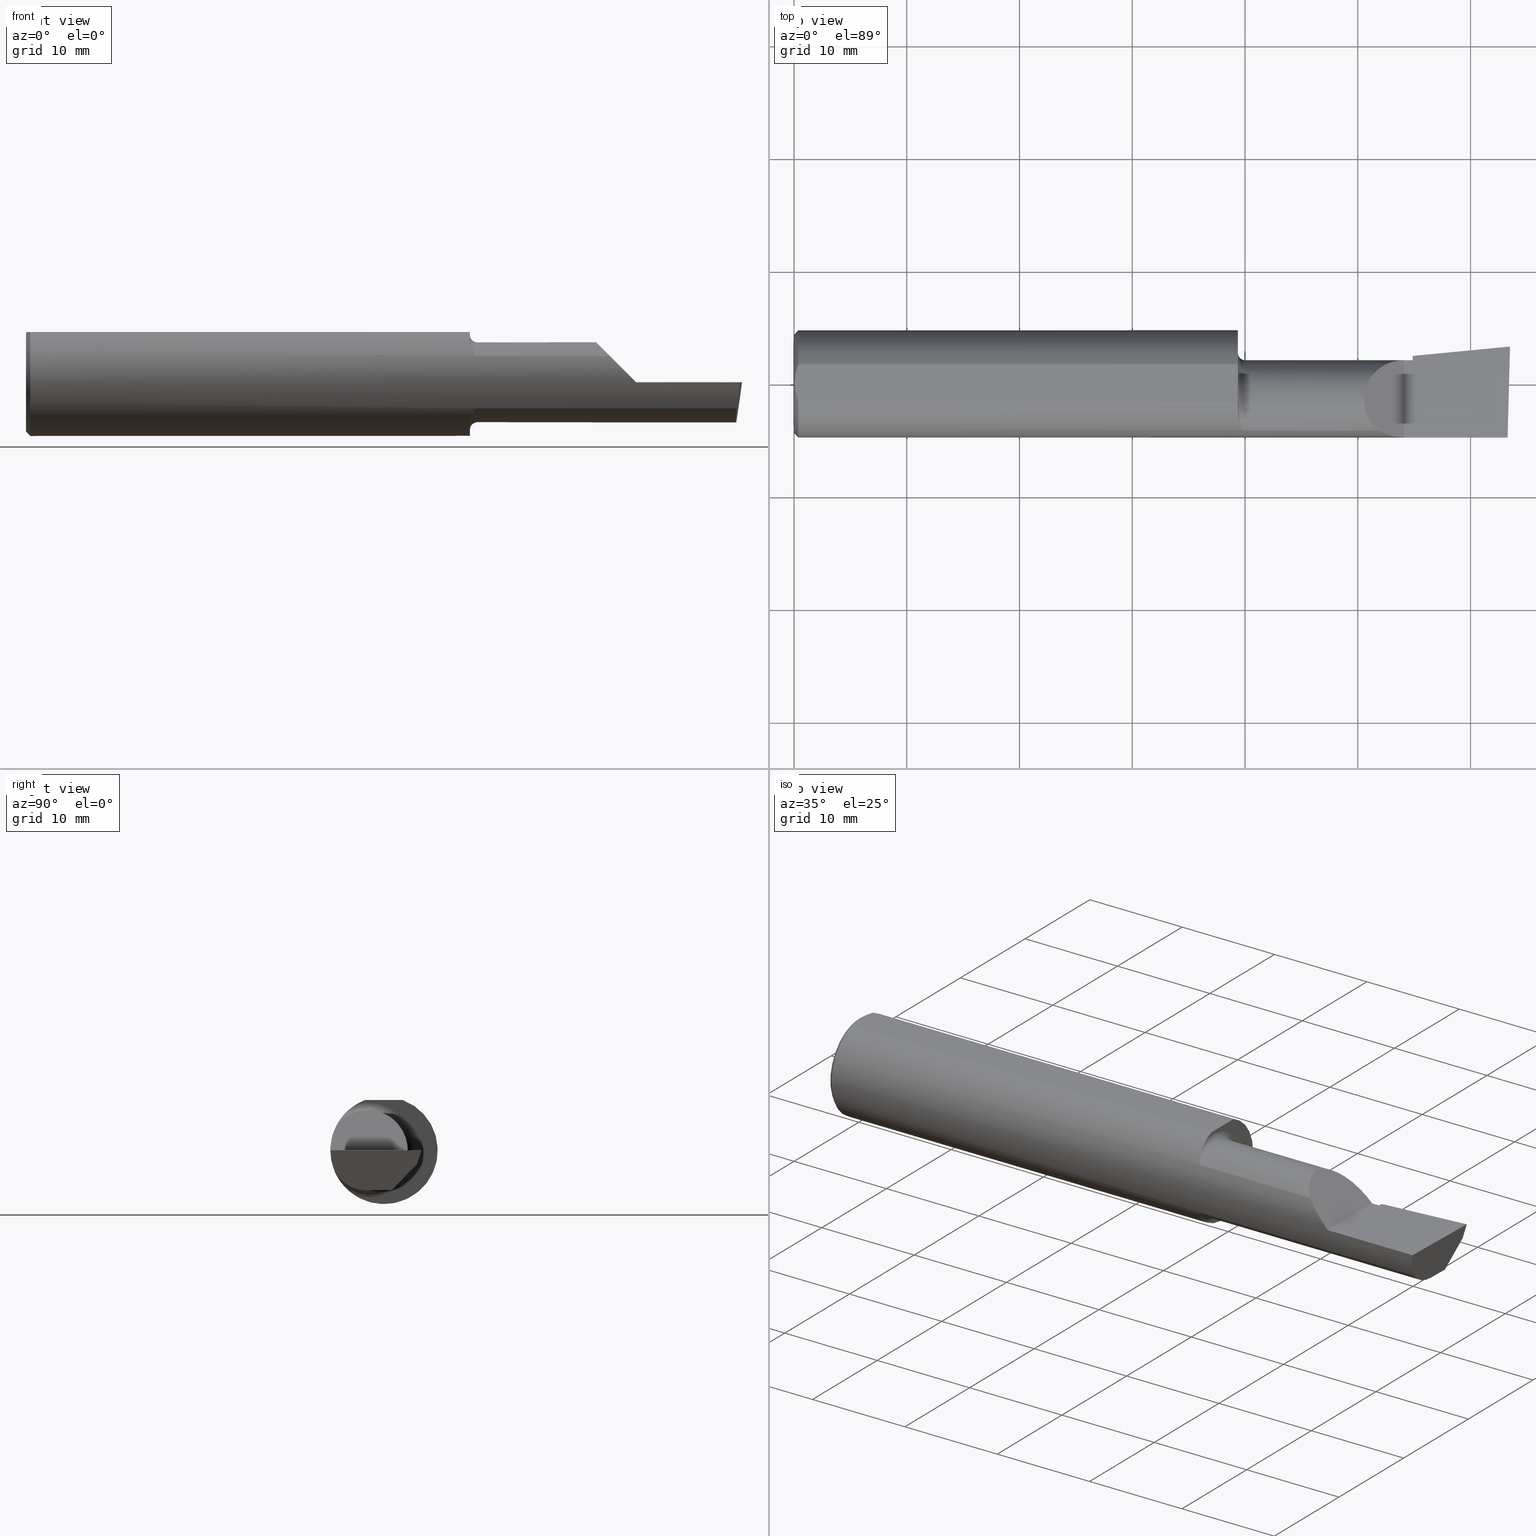
[diagram: canonical four-view strip — front | top / right | iso, engineering-drawing reading convention]
A machine part, canonical four-view strip (front | top / right | iso — engineering-drawing reading convention). The complete STEP part file that produces these views, byte-faithful:
ISO-10303-21;
HEADER;
FILE_DESCRIPTION (( 'STEP AP203' ),
    '1' );
FILE_NAME ('217516-B320900.STEP',
    '2024-04-26T19:31:52',
    ( '' ),
    ( '' ),
    'SwSTEP 2.0',
    'SolidWorks 2022',
    '' );
FILE_SCHEMA (( 'CONFIG_CONTROL_DESIGN' ));
ENDSEC;

DATA;
#1 = PLANE ( 'NONE',  #517 ) ;
#2 = VECTOR ( 'NONE', #337, 39.37007874015748854 ) ;
#3 = AXIS2_PLACEMENT_3D ( 'NONE', #571, #235, #75 ) ;
#4 = CARTESIAN_POINT ( 'NONE',  ( 0.000000000000000000, -0.05740000000000001351, 0.000000000000000000 ) ) ;
#5 = ORIENTED_EDGE ( 'NONE', *, *, #470, .F. ) ;
#6 = DIRECTION ( 'NONE',  ( -1.000000000000000000, -0.000000000000000000, -0.000000000000000000 ) ) ;
#7 = EDGE_LOOP ( 'NONE', ( #272, #560, #181, #140, #277 ) ) ;
#8 = FACE_OUTER_BOUND ( 'NONE', #104, .T. ) ;
#9 = PLANE ( 'NONE',  #130 ) ;
#10 = ADVANCED_FACE ( 'NONE', ( #146 ), #53, .T. ) ;
#11 = CARTESIAN_POINT ( 'NONE',  ( 1.550384441902395327, -0.1115101367984837610, -0.1507946173152225067 ) ) ;
#12 = AXIS2_PLACEMENT_3D ( 'NONE', #72, #548, #218 ) ;
#13 = CARTESIAN_POINT ( 'NONE',  ( 2.493766568580444432, 0.1168246249203732934, -0.04780233936830599606 ) ) ;
#14 = DATE_AND_TIME ( #212, #367 ) ;
#15 = DIRECTION ( 'NONE',  ( 0.9953961983671787417, 0.09584575252022459191, -1.028972571603813720E-16 ) ) ;
#16 = VERTEX_POINT ( 'NONE', #43 ) ;
#17 = CARTESIAN_POINT ( 'NONE',  ( 2.493439983562941720, 0.1146611065212079089, -0.04999999999999999584 ) ) ;
#18 = CARTESIAN_POINT ( 'NONE',  ( 2.038695632261437130, -0.1635956445993029529, 0.09130436773856188959 ) ) ;
#19 = ORIENTED_EDGE ( 'NONE', *, *, #92, .T. ) ;
#20 = APPROVAL_STATUS ( 'not_yet_approved' ) ;
#21 = VECTOR ( 'NONE', #584, 39.37007874015748854 ) ;
#22 = CARTESIAN_POINT ( 'NONE',  ( 0.000000000000000000, 0.06597272163553663527, 0.1753499999999999781 ) ) ;
#23 = VERTEX_POINT ( 'NONE', #93 ) ;
#24 = CARTESIAN_POINT ( 'NONE',  ( 1.550383728133730266, -0.1114837668894149980, 0.1508119329971097933 ) ) ;
#25 = ORIENTED_EDGE ( 'NONE', *, *, #68, .F. ) ;
#26 = DIRECTION ( 'NONE',  ( -1.033731667140896077E-16, 0.000000000000000000, -1.000000000000000000 ) ) ;
#27 = DIRECTION ( 'NONE',  ( 0.000000000000000000, -1.000000000000000000, 0.000000000000000000 ) ) ;
#28 = ORIENTED_EDGE ( 'NONE', *, *, #522, .T. ) ;
#29 = COORDINATED_UNIVERSAL_TIME_OFFSET ( 8, 0, .BEHIND. ) ;
#30 = ADVANCED_FACE ( 'NONE', ( #434 ), #488, .F. ) ;
#31 = CARTESIAN_POINT ( 'NONE',  ( 2.500000000000000000, -0.05739999999999999963, -0.1400500000000000633 ) ) ;
#32 = CIRCLE ( 'NONE', #151, 0.1873499999999999888 ) ;
#33 = AXIS2_PLACEMENT_3D ( 'NONE', #329, #521, #126 ) ;
#34 = ORIENTED_EDGE ( 'NONE', *, *, #132, .T. ) ;
#35 =( BOUNDED_CURVE ( )  B_SPLINE_CURVE ( 3, ( #502, #418, #177, #459 ),
 .UNSPECIFIED., .F., .T. ) 
 B_SPLINE_CURVE_WITH_KNOTS ( ( 4, 4 ),
 ( 0.8516985021657653698, 1.360746882515200484 ),
 .UNSPECIFIED. ) 
 CURVE ( )  GEOMETRIC_REPRESENTATION_ITEM ( )  RATIONAL_B_SPLINE_CURVE ( ( 1.000000000000000000, 0.9785221379938656705, 0.9785221379938656705, 1.000000000000000000 ) ) 
 REPRESENTATION_ITEM ( '' )  );
#36 =( NAMED_UNIT ( * ) PLANE_ANGLE_UNIT ( ) SI_UNIT ( $, .RADIAN. ) );
#37 = CARTESIAN_POINT ( 'NONE',  ( 1.563764108097883687, -0.1573043405450770260, 0.1018329020719638545 ) ) ;
#38 = ORIENTED_EDGE ( 'NONE', *, *, #338, .T. ) ;
#39 = PERSON_AND_ORGANIZATION_ROLE ( 'creator' ) ;
#40 = EDGE_CURVE ( 'NONE', #158, #567, #412, .T. ) ;
#41 = PLANE ( 'NONE',  #356 ) ;
#42 = PRODUCT_DEFINITION ( 'UNKNOWN', '', #346, #424 ) ;
#43 = CARTESIAN_POINT ( 'NONE',  ( 2.160000000000000142, 0.01441505128072300204, -0.1202356058309979880 ) ) ;
#44 = CARTESIAN_POINT ( 'NONE',  ( 2.160000000000000142, -0.05739999999999999963, -0.1400500000000000633 ) ) ;
#45 = CIRCLE ( 'NONE', #435, 0.1873499999999999888 ) ;
#46 = VERTEX_POINT ( 'NONE', #512 ) ;
#47 = DIRECTION ( 'NONE',  ( 6.829619984160658816E-18, -1.000000000000000000, 0.000000000000000000 ) ) ;
#48 = EDGE_CURVE ( 'NONE', #351, #124, #56, .T. ) ;
#49 = CARTESIAN_POINT ( 'NONE',  ( 0.008227791779583789808, -0.04447712204611815878, 0.1753499999999999781 ) ) ;
#50 = FACE_OUTER_BOUND ( 'NONE', #90, .T. ) ;
#51 = EDGE_CURVE ( 'NONE', #379, #128, #35, .T. ) ;
#52 = PERSON_AND_ORGANIZATION_ROLE ( 'design_supplier' ) ;
#53 = CONICAL_SURFACE ( 'NONE', #414, 0.1873499999999999888, 0.7853981633974602694 ) ;
#54 = AXIS2_PLACEMENT_3D ( 'NONE', #154, #302, #626 ) ;
#55 = CARTESIAN_POINT ( 'NONE',  ( 0.000000000000000000, 0.000000000000000000, 0.000000000000000000 ) ) ;
#56 =( BOUNDED_CURVE ( )  B_SPLINE_CURVE ( 3, ( #175, #504, #545, #224 ),
 .UNSPECIFIED., .F., .T. ) 
 B_SPLINE_CURVE_WITH_KNOTS ( ( 4, 4 ),
 ( 4.712388980384689674, 5.221437360734125122 ),
 .UNSPECIFIED. ) 
 CURVE ( )  GEOMETRIC_REPRESENTATION_ITEM ( )  RATIONAL_B_SPLINE_CURVE ( ( 1.000000000000000000, 0.9785221379938656705, 0.9785221379938656705, 1.000000000000000000 ) ) 
 REPRESENTATION_ITEM ( '' )  );
#57 = EDGE_LOOP ( 'NONE', ( #614, #331, #429, #421, #540 ) ) ;
#58 = EDGE_LOOP ( 'NONE', ( #85, #172 ) ) ;
#59 = CARTESIAN_POINT ( 'NONE',  ( 0.003000000000000169632, 0.01127363201155560934, 0.1753499999999999781 ) ) ;
#60 = CARTESIAN_POINT ( 'NONE',  ( 2.500188977433779769, 0.1311105994646662165, 0.001440373173041280741 ) ) ;
#61 = PRODUCT_RELATED_PRODUCT_CATEGORY ( 'detail', '', ( #222 ) ) ;
#62 = PERSON_AND_ORGANIZATION_ROLE ( 'classification_officer' ) ;
#63 = CARTESIAN_POINT ( 'NONE',  ( 1.553041727949557638, -0.1311116946065050415, -0.1340922927843371804 ) ) ;
#64 = CARTESIAN_POINT ( 'NONE',  ( 1.574999999999999956, -0.05740000000000000657, 0.000000000000000000 ) ) ;
#65 = LINE ( 'NONE', #114, #562 ) ;
#66 = AXIS2_PLACEMENT_3D ( 'NONE', #525, #78, #143 ) ;
#67 = DIRECTION ( 'NONE',  ( 0.000000000000000000, 1.000000000000000000, 0.000000000000000000 ) ) ;
#68 = EDGE_CURVE ( 'NONE', #620, #589, #403, .T. ) ;
#69 = CARTESIAN_POINT ( 'NONE',  ( 1.567975941902154391, -0.1612443294219079171, -0.09540922431498241596 ) ) ;
#70 = LINE ( 'NONE', #60, #298 ) ;
#71 = ORIENTED_EDGE ( 'NONE', *, *, #282, .F. ) ;
#72 = CARTESIAN_POINT ( 'NONE',  ( 1.550000000000000044, -0.05740000000000000657, 0.000000000000000000 ) ) ;
#73 = CARTESIAN_POINT ( 'NONE',  ( 2.477873865042410806, -0.05739999999999999963, -0.1400500000000000633 ) ) ;
#74 = ORIENTED_EDGE ( 'NONE', *, *, #384, .F. ) ;
#75 = DIRECTION ( 'NONE',  ( 1.000000000000000000, 0.000000000000000000, 0.000000000000000000 ) ) ;
#76 = AXIS2_PLACEMENT_3D ( 'NONE', #465, #230, #606 ) ;
#77 = VECTOR ( 'NONE', #436, 39.37007874015748143 ) ;
#78 = DIRECTION ( 'NONE',  ( 1.000000000000000000, 0.000000000000000000, 0.000000000000000000 ) ) ;
#79 = ORIENTED_EDGE ( 'NONE', *, *, #451, .T. ) ;
#80 = CARTESIAN_POINT ( 'NONE',  ( 1.570903862568969078, -0.1628809688430619407, 0.09258733509388515637 ) ) ;
#81 = ORIENTED_EDGE ( 'NONE', *, *, #288, .F. ) ;
#82 = EDGE_CURVE ( 'NONE', #374, #334, #455, .T. ) ;
#83 =( LENGTH_UNIT ( ) NAMED_UNIT ( * ) SI_UNIT ( $, .METRE. ) );
#84 = LINE ( 'NONE', #31, #162 ) ;
#85 = ORIENTED_EDGE ( 'NONE', *, *, #470, .T. ) ;
#86 = CARTESIAN_POINT ( 'NONE',  ( 2.480058035321255794, 0.02601009779168077587, -0.1400500000000000633 ) ) ;
#87 = CARTESIAN_POINT ( 'NONE',  ( 1.574999999999999956, -0.1635956445993029529, -0.09130436773856180632 ) ) ;
#88 = EDGE_CURVE ( 'NONE', #426, #281, #580, .T. ) ;
#89 = APPROVAL_PERSON_ORGANIZATION ( #507, #159, #311 ) ;
#90 = EDGE_LOOP ( 'NONE', ( #96, #438, #268, #136, #349, #474 ) ) ;
#91 = CARTESIAN_POINT ( 'NONE',  ( 2.038695632261437130, -0.1635956445993029529, 0.09130436773856188959 ) ) ;
#92 = EDGE_CURVE ( 'NONE', #244, #334, #32, .T. ) ;
#93 = CARTESIAN_POINT ( 'NONE',  ( 2.160000000000000142, 0.09791172361284175563, 3.308097179827818849E-16 ) ) ;
#94 = CYLINDRICAL_SURFACE ( 'NONE', #427, 0.1400499999999999801 ) ;
#95 = DIMENSIONAL_EXPONENTS ( 1.000000000000000000, 0.000000000000000000, 0.000000000000000000, 0.000000000000000000, 0.000000000000000000, 0.000000000000000000, 0.000000000000000000 ) ;
#96 = ORIENTED_EDGE ( 'NONE', *, *, #288, .T. ) ;
#97 = ADVANCED_FACE ( 'NONE', ( #310 ), #9, .T. ) ;
#98 = CARTESIAN_POINT ( 'NONE',  ( 0.01499999999999999424, 2.294375778202566330E-17, 0.1873499999999999888 ) ) ;
#99 = APPROVAL_PERSON_ORGANIZATION ( #191, #240, #383 ) ;
#100 = LINE ( 'NONE', #98, #174 ) ;
#101 = CARTESIAN_POINT ( 'NONE',  ( 1.574999999999999956, -0.1635956445993027031, 0.09130436773856204224 ) ) ;
#102 = ORIENTED_EDGE ( 'NONE', *, *, #219, .T. ) ;
#103 = PLANE ( 'NONE',  #395 ) ;
#104 = EDGE_LOOP ( 'NONE', ( #376, #382, #342, #450 ) ) ;
#105 = ADVANCED_FACE ( 'NONE', ( #170 ), #216, .T. ) ;
#106 = AXIS2_PLACEMENT_3D ( 'NONE', #110, #557, #112 ) ;
#107 = AXIS2_PLACEMENT_3D ( 'NONE', #458, #369, #597 ) ;
#108 = LINE ( 'NONE', #454, #315 ) ;
#109 = EDGE_CURVE ( 'NONE', #514, #234, #462, .T. ) ;
#110 = CARTESIAN_POINT ( 'NONE',  ( 2.160000000000000142, 0.09791172361283667636, 0.000000000000000000 ) ) ;
#111 = CARTESIAN_POINT ( 'NONE',  ( 1.563743174082349752, -0.1572750258711007043, -0.1018777902325216089 ) ) ;
#112 = DIRECTION ( 'NONE',  ( 6.829619984160658046E-18, -1.000000000000000000, 0.000000000000000000 ) ) ;
#113 = ADVANCED_FACE ( 'NONE', ( #123 ), #549, .T. ) ;
#114 = CARTESIAN_POINT ( 'NONE',  ( 2.160000000000000142, 0.06382066673065313334, -0.06931012851386068874 ) ) ;
#115 = CARTESIAN_POINT ( 'NONE',  ( 2.511419111345317923, 0.1163922996227946260, -0.04999999999999999584 ) ) ;
#116 = SHAPE_DEFINITION_REPRESENTATION ( #215, #471 ) ;
#117 = VECTOR ( 'NONE', #168, 39.37007874015748854 ) ;
#118 = CARTESIAN_POINT ( 'NONE',  ( 1.572779935319434719, -0.1635956445993029529, -0.09130436773856194510 ) ) ;
#119 = APPROVAL_PERSON_ORGANIZATION ( #134, #401, #475 ) ;
#120 = CARTESIAN_POINT ( 'NONE',  ( 1.550000000000000044, -0.09715400696864107122, 0.1601908905959925078 ) ) ;
#121 = ORIENTED_EDGE ( 'NONE', *, *, #430, .F. ) ;
#122 = CARTESIAN_POINT ( 'NONE',  ( 0.01499999999999999424, 0.000000000000000000, 0.000000000000000000 ) ) ;
#123 = FACE_OUTER_BOUND ( 'NONE', #328, .T. ) ;
#124 = VERTEX_POINT ( 'NONE', #18 ) ;
#125 = MANIFOLD_SOLID_BREP ( 'Extrude7', #239 ) ;
#126 = DIRECTION ( 'NONE',  ( 0.000000000000000000, 0.000000000000000000, 1.000000000000000000 ) ) ;
#127 = CARTESIAN_POINT ( 'NONE',  ( 1.550000000000000044, -0.09715400696864107122, 0.1601908905959925078 ) ) ;
#128 = VERTEX_POINT ( 'NONE', #308 ) ;
#129 = PERSON_AND_ORGANIZATION_ROLE ( 'design_owner' ) ;
#130 = AXIS2_PLACEMENT_3D ( 'NONE', #164, #593, #370 ) ;
#131 = CARTESIAN_POINT ( 'NONE',  ( 0.01499999999999999424, 0.000000000000000000, -0.1873499999999999888 ) ) ;
#132 = EDGE_CURVE ( 'NONE', #514, #148, #478, .T. ) ;
#133 = VERTEX_POINT ( 'NONE', #73 ) ;
#134 = PERSON_AND_ORGANIZATION ( #300, #489 ) ;
#135 = CARTESIAN_POINT ( 'NONE',  ( 1.562204638458737138, -0.1550630761760522502, 0.1052254855377565412 ) ) ;
#136 = ORIENTED_EDGE ( 'NONE', *, *, #156, .T. ) ;
#137 =( NAMED_UNIT ( * ) SI_UNIT ( $, .STERADIAN. ) SOLID_ANGLE_UNIT ( ) );
#138 = EDGE_CURVE ( 'NONE', #193, #599, #276, .T. ) ;
#139 = CARTESIAN_POINT ( 'NONE',  ( 2.511419111345317923, 0.1163922996227946260, -0.04999999999999999584 ) ) ;
#140 = ORIENTED_EDGE ( 'NONE', *, *, #396, .F. ) ;
#141 = CALENDAR_DATE ( 2024, 26, 4 ) ;
#142 = CC_DESIGN_APPROVAL ( #159, ( #554 ) ) ;
#143 = DIRECTION ( 'NONE',  ( 0.000000000000000000, 0.000000000000000000, -1.000000000000000000 ) ) ;
#144 = CIRCLE ( 'NONE', #12, 0.1650500000000000023 ) ;
#145 = AXIS2_PLACEMENT_3D ( 'NONE', #307, #511, #411 ) ;
#146 = FACE_OUTER_BOUND ( 'NONE', #57, .T. ) ;
#147 = DIRECTION ( 'NONE',  ( 0.000000000000000000, -1.438723400918613551E-16, -1.000000000000000000 ) ) ;
#148 = VERTEX_POINT ( 'NONE', #120 ) ;
#149 = DIRECTION ( 'NONE',  ( 6.829619984160658046E-18, -1.000000000000000000, 1.438723400918613551E-16 ) ) ;
#150 = DIRECTION ( 'NONE',  ( 0.000000000000000000, -1.000000000000000000, 0.000000000000000000 ) ) ;
#151 = AXIS2_PLACEMENT_3D ( 'NONE', #270, #264, #409 ) ;
#152 = ADVANCED_FACE ( 'NONE', ( #317 ), #509, .T. ) ;
#153 = AXIS2_PLACEMENT_3D ( 'NONE', #55, #452, #163 ) ;
#154 = CARTESIAN_POINT ( 'NONE',  ( 0.01499999999999999424, 0.000000000000000000, 0.000000000000000000 ) ) ;
#155 = DIRECTION ( 'NONE',  ( -1.000000000000000000, -6.829619984160658046E-18, -0.000000000000000000 ) ) ;
#156 = EDGE_CURVE ( 'NONE', #589, #46, #70, .T. ) ;
#157 = ORIENTED_EDGE ( 'NONE', *, *, #132, .F. ) ;
#158 = VERTEX_POINT ( 'NONE', #453 ) ;
#159 = APPROVAL ( #165, 'UNSPECIFIED' ) ;
#160 = CARTESIAN_POINT ( 'NONE',  ( 0.008244775919947424855, 0.04453482769755855164, 0.1753499999999999504 ) ) ;
#161 = ORIENTED_EDGE ( 'NONE', *, *, #88, .T. ) ;
#162 = VECTOR ( 'NONE', #243, 39.37007874015748143 ) ;
#163 = DIRECTION ( 'NONE',  ( 0.000000000000000000, 0.000000000000000000, 1.000000000000000000 ) ) ;
#164 = CARTESIAN_POINT ( 'NONE',  ( 2.509953961983671711, 0.1316084575252021438, -6.829619984160658046E-17 ) ) ;
#165 = APPROVAL_STATUS ( 'not_yet_approved' ) ;
#166 = EDGE_CURVE ( 'NONE', #599, #570, #420, .T. ) ;
#167 = CARTESIAN_POINT ( 'NONE',  ( 2.160000000000000142, -0.05739999999999999963, 0.000000000000000000 ) ) ;
#168 = DIRECTION ( 'NONE',  ( 0.1053106618240635256, 0.6976485211320200275, 0.7086580314005359593 ) ) ;
#169 = CARTESIAN_POINT ( 'NONE',  ( 1.550000000000000044, -0.06597272163553659363, 0.1753499999999999781 ) ) ;
#170 = FACE_OUTER_BOUND ( 'NONE', #178, .T. ) ;
#171 = EDGE_CURVE ( 'NONE', #589, #467, #192, .T. ) ;
#172 = ORIENTED_EDGE ( 'NONE', *, *, #138, .T. ) ;
#173 = DIRECTION ( 'NONE',  ( 1.000000000000000000, 6.829619984160658046E-18, 0.000000000000000000 ) ) ;
#174 = VECTOR ( 'NONE', #194, 39.37007874015748143 ) ;
#175 = CARTESIAN_POINT ( 'NONE',  ( 2.129999999999999893, -0.1873499999999999888, 1.065442715258197396E-16 ) ) ;
#176 = ORIENTED_EDGE ( 'NONE', *, *, #40, .F. ) ;
#177 = CARTESIAN_POINT ( 'NONE',  ( 2.487725449370724817, -0.1873500000000000443, -0.03213820089768505694 ) ) ;
#178 = EDGE_LOOP ( 'NONE', ( #618, #526, #518, #397 ) ) ;
#179 = PERSON_AND_ORGANIZATION ( #300, #489 ) ;
#180 = FACE_OUTER_BOUND ( 'NONE', #585, .T. ) ;
#181 = ORIENTED_EDGE ( 'NONE', *, *, #609, .F. ) ;
#182 = LENGTH_MEASURE_WITH_UNIT ( LENGTH_MEASURE( 0.02539999999999999897 ), #83 );
#183 = CIRCLE ( 'NONE', #466, 0.1400500000000000356 ) ;
#184 = LINE ( 'NONE', #326, #388 ) ;
#185 = ORIENTED_EDGE ( 'NONE', *, *, #617, .F. ) ;
#186 = ADVANCED_FACE ( 'NONE', ( #180 ), #445, .T. ) ;
#187 = DATE_AND_TIME ( #615, #480 ) ;
#188 = CARTESIAN_POINT ( 'NONE',  ( 2.129999999999999893, -0.2500000000000000555, 1.065442715258197396E-16 ) ) ;
#189 = CC_DESIGN_PERSON_AND_ORGANIZATION_ASSIGNMENT ( #229, #422, ( #42 ) ) ;
#190 = EDGE_LOOP ( 'NONE', ( #102, #500 ) ) ;
#191 = PERSON_AND_ORGANIZATION ( #300, #489 ) ;
#192 = LINE ( 'NONE', #139, #2 ) ;
#193 = VERTEX_POINT ( 'NONE', #385 ) ;
#194 = DIRECTION ( 'NONE',  ( 0.7071067811865390240, 8.659560562355036396E-17, 0.7071067811865560104 ) ) ;
#195 = AXIS2_PLACEMENT_3D ( 'NONE', #115, #321, #313 ) ;
#196 = VECTOR ( 'NONE', #15, 39.37007874015748143 ) ;
#197 = ORIENTED_EDGE ( 'NONE', *, *, #166, .T. ) ;
#198 = CARTESIAN_POINT ( 'NONE',  ( 2.160000000000000142, -0.05739999999999999963, -0.1400500000000000633 ) ) ;
#199 = CARTESIAN_POINT ( 'NONE',  ( 2.160000000000000142, 0.06495571228477943493, -0.06814016562413294231 ) ) ;
#200 = CARTESIAN_POINT ( 'NONE',  ( 0.004093196532652216939, -0.02240707710020816909, 0.1753499999999999504 ) ) ;
#201 = AXIS2_PLACEMENT_3D ( 'NONE', #267, #274, #553 ) ;
#202 = CC_DESIGN_APPROVAL ( #401, ( #346 ) ) ;
#203 = ORIENTED_EDGE ( 'NONE', *, *, #82, .T. ) ;
#204 = DIRECTION ( 'NONE',  ( -1.000000000000000000, -6.829619984160658046E-18, -0.000000000000000000 ) ) ;
#205 = DIRECTION ( 'NONE',  ( 1.000000000000000000, 0.000000000000000000, 0.000000000000000000 ) ) ;
#206 = DIRECTION ( 'NONE',  ( -1.000000000000000000, -6.829619984160658046E-18, -0.000000000000000000 ) ) ;
#207 = ORIENTED_EDGE ( 'NONE', *, *, #396, .T. ) ;
#208 = CARTESIAN_POINT ( 'NONE',  ( 2.500000000000000000, -0.05739999999999999963, -0.1400500000000000633 ) ) ;
#209 = CARTESIAN_POINT ( 'NONE',  ( -9.564882787816662316E-19, 0.08264999999999995961, 3.267291166268304703E-16 ) ) ;
#210 = EDGE_CURVE ( 'NONE', #351, #158, #572, .T. ) ;
#211 =( BOUNDED_CURVE ( )  B_SPLINE_CURVE ( 3, ( #561, #425, #323, #612 ),
 .UNSPECIFIED., .F., .T. ) 
 B_SPLINE_CURVE_WITH_KNOTS ( ( 4, 4 ),
 ( 5.632580117768154260, 6.493234751459282528 ),
 .UNSPECIFIED. ) 
 CURVE ( )  GEOMETRIC_REPRESENTATION_ITEM ( )  RATIONAL_B_SPLINE_CURVE ( ( 1.000000000000000000, 0.9392195014330942948, 0.9392195014330942948, 1.000000000000000000 ) ) 
 REPRESENTATION_ITEM ( '' )  );
#212 = CALENDAR_DATE ( 2024, 26, 4 ) ;
#213 = CIRCLE ( 'NONE', #153, 0.1723499999999996424 ) ;
#214 = CARTESIAN_POINT ( 'NONE',  ( 1.550000000000000044, -0.1045082199249679489, -0.1557306416133594495 ) ) ;
#215 = PRODUCT_DEFINITION_SHAPE ( 'NONE', 'NONE',  #42 ) ;
#216 = PLANE ( 'NONE',  #106 ) ;
#217 = ORIENTED_EDGE ( 'NONE', *, *, #341, .T. ) ;
#218 = DIRECTION ( 'NONE',  ( 0.000000000000000000, -1.000000000000000000, 0.000000000000000000 ) ) ;
#219 = EDGE_CURVE ( 'NONE', #16, #416, #241, .T. ) ;
#220 = DIRECTION ( 'NONE',  ( 0.000000000000000000, -1.000000000000000000, 0.000000000000000000 ) ) ;
#221 = EDGE_LOOP ( 'NONE', ( #419, #161, #259, #368 ) ) ;
#222 = PRODUCT ( '217516-B320900', '217516-B320900', '', ( #464 ) ) ;
#223 = CARTESIAN_POINT ( 'NONE',  ( 0.000000000000000000, 0.000000000000000000, -0.1723499999999996424 ) ) ;
#224 = CARTESIAN_POINT ( 'NONE',  ( 2.038695632261437130, -0.1635956445993029529, 0.09130436773856188959 ) ) ;
#225 = VECTOR ( 'NONE', #596, 39.37007874015748143 ) ;
#226 = EDGE_LOOP ( 'NONE', ( #81, #460, #520, #28, #610, #284, #306, #400, #531, #296 ) ) ;
#227 =( GEOMETRIC_REPRESENTATION_CONTEXT ( 3 ) GLOBAL_UNCERTAINTY_ASSIGNED_CONTEXT ( ( #242 ) ) GLOBAL_UNIT_ASSIGNED_CONTEXT ( ( #232, #36, #137 ) ) REPRESENTATION_CONTEXT ( 'NONE', 'WORKASPACE' ) );
#228 = EDGE_CURVE ( 'NONE', #16, #433, #622, .T. ) ;
#229 = PERSON_AND_ORGANIZATION ( #300, #489 ) ;
#230 = DIRECTION ( 'NONE',  ( 1.000000000000000000, 6.829619984160658046E-18, 0.000000000000000000 ) ) ;
#231 = ORIENTED_EDGE ( 'NONE', *, *, #48, .T. ) ;
#232 =( CONVERSION_BASED_UNIT ( 'INCH', #182 ) LENGTH_UNIT ( ) NAMED_UNIT ( #95 ) );
#233 = CARTESIAN_POINT ( 'NONE',  ( 1.551891754936544743, -0.1247344934163565761, 0.1400506178720502815 ) ) ;
#234 = VERTEX_POINT ( 'NONE', #476 ) ;
#235 = DIRECTION ( 'NONE',  ( 0.000000000000000000, 0.000000000000000000, 1.000000000000000000 ) ) ;
#236 = DIRECTION ( 'NONE',  ( 6.829619984160658046E-18, -1.000000000000000000, 0.000000000000000000 ) ) ;
#237 = EDGE_CURVE ( 'NONE', #620, #133, #619, .T. ) ;
#238 = EDGE_LOOP ( 'NONE', ( #19, #510, #34, #324 ) ) ;
#239 = CLOSED_SHELL ( 'NONE', ( #10, #105, #477, #537, #621, #437, #628, #600, #30, #186, #447, #152, #443, #97, #113, #271, #392 ) ) ;
#240 = APPROVAL ( #20, 'UNSPECIFIED' ) ;
#241 = CIRCLE ( 'NONE', #289, 0.1400499999999999801 ) ;
#242 = UNCERTAINTY_MEASURE_WITH_UNIT (LENGTH_MEASURE( 1.000000000000000082E-05 ), #232, 'distance_accuracy_value', 'NONE');
#243 = DIRECTION ( 'NONE',  ( -1.000000000000000000, 5.691349986800549142E-18, -0.000000000000000000 ) ) ;
#244 = VERTEX_POINT ( 'NONE', #247 ) ;
#245 = APPLICATION_PROTOCOL_DEFINITION ( 'international standard', 'config_control_design', 1994, #344 ) ;
#246 = ORIENTED_EDGE ( 'NONE', *, *, #407, .F. ) ;
#247 = CARTESIAN_POINT ( 'NONE',  ( 1.550000000000000044, -0.09715400696864107122, -0.1601908905959925078 ) ) ;
#248 = ORIENTED_EDGE ( 'NONE', *, *, #513, .F. ) ;
#249 = DIRECTION ( 'NONE',  ( 0.000000000000000000, 1.000000000000000000, 8.537024980200821325E-17 ) ) ;
#250 = CIRCLE ( 'NONE', #591, 0.1400500000000000356 ) ;
#251 = CARTESIAN_POINT ( 'NONE',  ( 0.000000000000000000, 0.000000000000000000, 0.000000000000000000 ) ) ;
#252 = FACE_OUTER_BOUND ( 'NONE', #221, .T. ) ;
#253 = CARTESIAN_POINT ( 'NONE',  ( 1.550000000000000044, 0.2373500000000000332, 0.1753499999999999504 ) ) ;
#254 = LINE ( 'NONE', #393, #77 ) ;
#255 = TOROIDAL_SURFACE ( 'NONE', #497, 0.1650500000000000023, 0.02499999999999994588 ) ;
#256 = COORDINATED_UNIVERSAL_TIME_OFFSET ( 8, 0, .BEHIND. ) ;
#257 = ORIENTED_EDGE ( 'NONE', *, *, #325, .F. ) ;
#258 = DIRECTION ( 'NONE',  ( 0.000000000000000000, 1.000000000000000000, -1.438723400918613551E-16 ) ) ;
#259 = ORIENTED_EDGE ( 'NONE', *, *, #617, .T. ) ;
#260 = CARTESIAN_POINT ( 'NONE',  ( 0.01125230581755086272, 0.05532998191409922023, 0.1753500000000000059 ) ) ;
#261 = DIRECTION ( 'NONE',  ( 0.1240019227988267692, 0.3022330132596590113, 0.9451342385281470415 ) ) ;
#262 = CALENDAR_DATE ( 2024, 26, 4 ) ;
#263 = CARTESIAN_POINT ( 'NONE',  ( 1.551903396790307310, -0.1248165254919059441, -0.1399798634953948739 ) ) ;
#264 = DIRECTION ( 'NONE',  ( 1.000000000000000000, 6.829619984160658046E-18, 0.000000000000000000 ) ) ;
#265 = VECTOR ( 'NONE', #149, 39.37007874015748143 ) ;
#266 = DIRECTION ( 'NONE',  ( 4.755568962650853567E-18, -0.6963153109074925462, -0.7177360153954946975 ) ) ;
#267 = CARTESIAN_POINT ( 'NONE',  ( 0.000000000000000000, 0.000000000000000000, 0.000000000000000000 ) ) ;
#268 = ORIENTED_EDGE ( 'NONE', *, *, #68, .T. ) ;
#269 = CARTESIAN_POINT ( 'NONE',  ( 0.5470260790800316464, -0.05740000000000000657, 2.701812985571356346E-16 ) ) ;
#270 = CARTESIAN_POINT ( 'NONE',  ( 1.550000000000000044, 0.000000000000000000, 0.000000000000000000 ) ) ;
#271 = ADVANCED_FACE ( 'NONE', ( #473 ), #41, .F. ) ;
#272 = ORIENTED_EDGE ( 'NONE', *, *, #358, .F. ) ;
#273 = FACE_OUTER_BOUND ( 'NONE', #563, .T. ) ;
#274 = DIRECTION ( 'NONE',  ( -1.000000000000000000, -0.000000000000000000, -0.000000000000000000 ) ) ;
#275 = CC_DESIGN_PERSON_AND_ORGANIZATION_ASSIGNMENT ( #547, #62, ( #554 ) ) ;
#276 = CIRCLE ( 'NONE', #201, 0.1723499999999996424 ) ;
#277 = ORIENTED_EDGE ( 'NONE', *, *, #109, .F. ) ;
#278 = VECTOR ( 'NONE', #575, 39.37007874015748854 ) ;
#279 = CARTESIAN_POINT ( 'NONE',  ( 2.500000000000000000, -0.2500000000000000555, 6.829619984160658046E-17 ) ) ;
#280 = CARTESIAN_POINT ( 'NONE',  ( 2.477889026591898247, -0.05682100378451882677, -0.1400500000000000633 ) ) ;
#281 = VERTEX_POINT ( 'NONE', #87 ) ;
#282 = EDGE_CURVE ( 'NONE', #124, #158, #347, .T. ) ;
#283 = DIRECTION ( 'NONE',  ( 1.000000000000000000, 6.829619984160658046E-18, 0.000000000000000000 ) ) ;
#284 = ORIENTED_EDGE ( 'NONE', *, *, #40, .T. ) ;
#285 = APPROVAL_DATE_TIME ( #605, #240 ) ;
#286 = DIRECTION ( 'NONE',  ( 4.755568962650853567E-18, -0.6963153109074925462, -0.7177360153954946975 ) ) ;
#287 = ORIENTED_EDGE ( 'NONE', *, *, #109, .T. ) ;
#288 = EDGE_CURVE ( 'NONE', #379, #133, #211, .T. ) ;
#289 = AXIS2_PLACEMENT_3D ( 'NONE', #333, #283, #27 ) ;
#290 = DIRECTION ( 'NONE',  ( -0.000000000000000000, 1.000000000000000000, -0.000000000000000000 ) ) ;
#291 = ORIENTED_EDGE ( 'NONE', *, *, #51, .T. ) ;
#292 = CARTESIAN_POINT ( 'NONE',  ( 1.921229036482944075, -0.06260079402492431389, 0.2087709635170537925 ) ) ;
#293 = ORIENTED_EDGE ( 'NONE', *, *, #522, .F. ) ;
#294 = DIRECTION ( 'NONE',  ( 0.1219104985251942275, 0.000000000000000000, 0.9925410975618785825 ) ) ;
#295 = CC_DESIGN_DATE_AND_TIME_ASSIGNMENT ( #14, #594, ( #554 ) ) ;
#296 = ORIENTED_EDGE ( 'NONE', *, *, #332, .F. ) ;
#297 = FACE_OUTER_BOUND ( 'NONE', #226, .T. ) ;
#298 = VECTOR ( 'NONE', #261, 39.37007874015748854 ) ;
#299 = VECTOR ( 'NONE', #249, 39.37007874015748143 ) ;
#300 = PERSON ( 'UNSPECIFIED', 'UNSPECIFIED', 'UNSPECIFIED', ('UNSPECIFIED'), ('UNSPECIFIED'), ('UNSPECIFIED') ) ;
#301 = DIRECTION ( 'NONE',  ( -1.000000000000000000, -0.000000000000000000, -0.000000000000000000 ) ) ;
#302 = DIRECTION ( 'NONE',  ( -1.000000000000000000, -0.000000000000000000, -0.000000000000000000 ) ) ;
#303 = CARTESIAN_POINT ( 'NONE',  ( 2.500000000000000000, 0.2373500000000000332, 0.1753499999999999504 ) ) ;
#304 = ORIENTED_EDGE ( 'NONE', *, *, #451, .F. ) ;
#305 = VECTOR ( 'NONE', #428, 39.37007874015748143 ) ;
#306 = ORIENTED_EDGE ( 'NONE', *, *, #581, .T. ) ;
#307 = CARTESIAN_POINT ( 'NONE',  ( 2.129999999999999893, -0.2500000000000000555, 1.065442715258197396E-16 ) ) ;
#308 = CARTESIAN_POINT ( 'NONE',  ( 2.491672876940991710, -0.1873499999999999888, 6.915950918908297591E-17 ) ) ;
#309 = CARTESIAN_POINT ( 'NONE',  ( 1.558068207442171227, -0.1478915270140208627, -0.1153063024254926960 ) ) ;
#310 = FACE_OUTER_BOUND ( 'NONE', #319, .T. ) ;
#311 = APPROVAL_ROLE ( '' ) ;
#312 = DIRECTION ( 'NONE',  ( 0.000000000000000000, -1.000000000000000000, 0.000000000000000000 ) ) ;
#313 = DIRECTION ( 'NONE',  ( 0.000000000000000000, 0.6963153109074925462, 0.7177360153954948085 ) ) ;
#314 = VECTOR ( 'NONE', #598, 39.37007874015748143 ) ;
#315 = VECTOR ( 'NONE', #320, 39.37007874015748143 ) ;
#316 = PLANE ( 'NONE',  #603 ) ;
#317 = FACE_OUTER_BOUND ( 'NONE', #238, .T. ) ;
#318 = EDGE_CURVE ( 'NONE', #416, #16, #184, .T. ) ;
#319 = EDGE_LOOP ( 'NONE', ( #550, #463, #479, #624 ) ) ;
#320 = DIRECTION ( 'NONE',  ( -1.000000000000000000, -6.829619984160658046E-18, -0.000000000000000000 ) ) ;
#321 = DIRECTION ( 'NONE',  ( -0.06894566448119621160, 0.7160281025913034503, -0.6946583704589934793 ) ) ;
#322 = ORIENTED_EDGE ( 'NONE', *, *, #228, .T. ) ;
#323 = CARTESIAN_POINT ( 'NONE',  ( 2.476787929832031221, -0.09887019258091189755, -0.1400500000000000078 ) ) ;
#324 = ORIENTED_EDGE ( 'NONE', *, *, #498, .T. ) ;
#325 = EDGE_CURVE ( 'NONE', #148, #426, #448, .T. ) ;
#326 = CARTESIAN_POINT ( 'NONE',  ( 2.160000000000000142, 0.06382066673065313334, -0.06931012851386068874 ) ) ;
#327 = B_SPLINE_CURVE_WITH_KNOTS ( 'NONE', 3,
 ( #408, #59, #399, #160, #260, #546 ),
 .UNSPECIFIED., .F., .F.,
 ( 4, 2, 4 ),
 ( 0.003480013901590607410, 0.004330767971208083697, 0.005181522040825559984 ),
 .UNSPECIFIED. ) ;
#328 = EDGE_LOOP ( 'NONE', ( #25, #38, #485, #587, #574, #499 ) ) ;
#329 = CARTESIAN_POINT ( 'NONE',  ( 0.000000000000000000, 0.000000000000000000, 0.000000000000000000 ) ) ;
#330 = CARTESIAN_POINT ( 'NONE',  ( 1.572800914500664504, -0.1635956445997546749, 0.09130436773775280068 ) ) ;
#331 = ORIENTED_EDGE ( 'NONE', *, *, #430, .T. ) ;
#332 = EDGE_CURVE ( 'NONE', #133, #355, #84, .T. ) ;
#333 = CARTESIAN_POINT ( 'NONE',  ( 2.160000000000000142, -0.05739999999999999963, 0.000000000000000000 ) ) ;
#334 = VERTEX_POINT ( 'NONE', #616 ) ;
#335 = FACE_OUTER_BOUND ( 'NONE', #469, .T. ) ;
#336 = AXIS2_PLACEMENT_3D ( 'NONE', #279, #26, #527 ) ;
#337 = DIRECTION ( 'NONE',  ( -0.9953961983671800740, -0.09584575252021031166, 0.000000000000000000 ) ) ;
#338 = EDGE_CURVE ( 'NONE', #620, #433, #381, .T. ) ;
#339 = DIRECTION ( 'NONE',  ( 1.000000000000000000, 0.000000000000000000, 0.000000000000000000 ) ) ;
#340 = CARTESIAN_POINT ( 'NONE',  ( 3.377502344341257155E-32, -0.1873499999999999610, 3.267291166268304703E-16 ) ) ;
#341 = EDGE_CURVE ( 'NONE', #128, #46, #583, .T. ) ;
#342 = ORIENTED_EDGE ( 'NONE', *, *, #332, .T. ) ;
#343 = DIRECTION ( 'NONE',  ( -0.9922060308645608284, 0.02598182930461468559, 0.1218693434050591162 ) ) ;
#344 = APPLICATION_CONTEXT ( 'configuration controlled 3d designs of mechanical parts and assemblies' ) ;
#345 = CARTESIAN_POINT ( 'NONE',  ( 2.490039159128059953, -0.2497391662021650194, 6.932588350567417155E-17 ) ) ;
#346 = PRODUCT_DEFINITION_FORMATION_WITH_SPECIFIED_SOURCE ( 'ANY', '', #222, .NOT_KNOWN. ) ;
#347 =( BOUNDED_CURVE ( )  B_SPLINE_CURVE ( 3, ( #91, #292, #373, #559 ),
 .UNSPECIFIED., .F., .F. ) 
 B_SPLINE_CURVE_WITH_KNOTS ( ( 4, 4 ),
 ( 5.422530673488458852, 7.853981633974482790 ),
 .UNSPECIFIED. ) 
 CURVE ( )  GEOMETRIC_REPRESENTATION_ITEM ( )  RATIONAL_B_SPLINE_CURVE ( ( 1.000000000000000000, 0.5651045289226863666, 0.5651045289226863666, 1.000000000000000000 ) ) 
 REPRESENTATION_ITEM ( '' )  );
#348 = CARTESIAN_POINT ( 'NONE',  ( 2.160000000000000142, -0.05739999999999999963, 0.000000000000000000 ) ) ;
#349 = ORIENTED_EDGE ( 'NONE', *, *, #341, .F. ) ;
#350 = CARTESIAN_POINT ( 'NONE',  ( 2.160000000000000142, 0.08255448787293399870, -0.05000000000000000278 ) ) ;
#351 = VERTEX_POINT ( 'NONE', #449 ) ;
#352 = SECURITY_CLASSIFICATION_LEVEL ( 'unclassified' ) ;
#353 = CARTESIAN_POINT ( 'NONE',  ( 1.562184598714913220, -0.1550322129197695409, -0.1052705638704085622 ) ) ;
#354 = AXIS2_PLACEMENT_3D ( 'NONE', #251, #205, #359 ) ;
#355 = VERTEX_POINT ( 'NONE', #198 ) ;
#356 = AXIS2_PLACEMENT_3D ( 'NONE', #481, #528, #236 ) ;
#357 = CARTESIAN_POINT ( 'NONE',  ( 0.003000000000000218638, 2.334609556160449697E-17, 0.1753499999999999781 ) ) ;
#358 = EDGE_CURVE ( 'NONE', #334, #514, #391, .T. ) ;
#359 = DIRECTION ( 'NONE',  ( 0.000000000000000000, 0.000000000000000000, -1.000000000000000000 ) ) ;
#360 = APPROVAL_DATE_TIME ( #404, #159 ) ;
#361 = CARTESIAN_POINT ( 'NONE',  ( 1.550000000000000044, -0.09715400696864107122, -0.1601908905959925078 ) ) ;
#362 = DIRECTION ( 'NONE',  ( -1.000000000000000000, -6.829619984160658046E-18, -0.000000000000000000 ) ) ;
#363 = EDGE_CURVE ( 'NONE', #355, #433, #444, .T. ) ;
#364 = CARTESIAN_POINT ( 'NONE',  ( 1.867500000000000160, -0.1635956445993030639, 0.09130436773856169530 ) ) ;
#365 = DIRECTION ( 'NONE',  ( 1.000000000000000000, 6.829619984160658046E-18, 0.000000000000000000 ) ) ;
#366 = CC_DESIGN_PERSON_AND_ORGANIZATION_ASSIGNMENT ( #586, #52, ( #346 ) ) ;
#367 = LOCAL_TIME ( 12, 31, 52.00000000000000000, #256 ) ;
#368 = ORIENTED_EDGE ( 'NONE', *, *, #498, .F. ) ;
#369 = DIRECTION ( 'NONE',  ( -1.000000000000000000, -6.829619984160658046E-18, 0.000000000000000000 ) ) ;
#370 = DIRECTION ( 'NONE',  ( 0.000000000000000000, 0.2936076258024060692, 0.9559260233253795702 ) ) ;
#371 = ORIENTED_EDGE ( 'NONE', *, *, #210, .T. ) ;
#372 = DATE_AND_TIME ( #375, #613 ) ;
#373 = CARTESIAN_POINT ( 'NONE',  ( 1.975085956200449022, 0.08264999999999997349, 0.1549140437995493169 ) ) ;
#374 = VERTEX_POINT ( 'NONE', #532 ) ;
#375 = CALENDAR_DATE ( 2024, 26, 4 ) ;
#376 = ORIENTED_EDGE ( 'NONE', *, *, #338, .F. ) ;
#377 = VECTOR ( 'NONE', #301, 39.37007874015748143 ) ;
#378 = CARTESIAN_POINT ( 'NONE',  ( 1.556142321956750507, -0.1426151417460928550, 0.1217894822571234659 ) ) ;
#379 = VERTEX_POINT ( 'NONE', #442 ) ;
#380 = FACE_OUTER_BOUND ( 'NONE', #390, .T. ) ;
#381 = LINE ( 'NONE', #491, #543 ) ;
#382 = ORIENTED_EDGE ( 'NONE', *, *, #237, .T. ) ;
#383 = APPROVAL_ROLE ( '' ) ;
#384 = EDGE_CURVE ( 'NONE', #567, #23, #254, .T. ) ;
#385 = CARTESIAN_POINT ( 'NONE',  ( 0.000000000000000000, 2.202527268266512578E-17, 0.1723499999999996424 ) ) ;
#386 = ORIENTED_EDGE ( 'NONE', *, *, #48, .F. ) ;
#387 = EDGE_CURVE ( 'NONE', #570, #234, #582, .T. ) ;
#388 = VECTOR ( 'NONE', #468, 39.37007874015748854 ) ;
#389 = DIRECTION ( 'NONE',  ( -0.9953961983671800740, -0.09584575252021031166, -1.093478026937437817E-17 ) ) ;
#390 = EDGE_LOOP ( 'NONE', ( #304, #217, #248, #74, #176, #482 ) ) ;
#391 = LINE ( 'NONE', #253, #265 ) ;
#392 = ADVANCED_FACE ( 'NONE', ( #50 ), #1, .F. ) ;
#393 = CARTESIAN_POINT ( 'NONE',  ( 2.160000000000000142, -0.2500000000000000555, 1.034430765243970311E-16 ) ) ;
#394 = CARTESIAN_POINT ( 'NONE',  ( 0.003000000000000218638, 2.334609556160449697E-17, 0.1753499999999999781 ) ) ;
#395 = AXIS2_PLACEMENT_3D ( 'NONE', #303, #147, #258 ) ;
#396 = EDGE_CURVE ( 'NONE', #234, #538, #625, .T. ) ;
#397 = ORIENTED_EDGE ( 'NONE', *, *, #581, .F. ) ;
#398 = CARTESIAN_POINT ( 'NONE',  ( 0.01499999999999999424, 0.000000000000000000, 0.000000000000000000 ) ) ;
#399 = CARTESIAN_POINT ( 'NONE',  ( 0.004115035183746292881, 0.02255629470626744487, 0.1753499999999999781 ) ) ;
#400 = ORIENTED_EDGE ( 'NONE', *, *, #219, .F. ) ;
#401 = APPROVAL ( #515, 'UNSPECIFIED' ) ;
#402 = LINE ( 'NONE', #269, #196 ) ;
#403 = LINE ( 'NONE', #13, #117 ) ;
#404 = DATE_AND_TIME ( #262, #544 ) ;
#405 = PLANE ( 'NONE',  #145 ) ;
#406 = CARTESIAN_POINT ( 'NONE',  ( 0.000000000000000000, -0.06597272163553657975, 0.1753499999999999781 ) ) ;
#407 = EDGE_CURVE ( 'NONE', #16, #355, #183, .T. ) ;
#408 = CARTESIAN_POINT ( 'NONE',  ( 0.003000000000000218638, 2.334609556160449697E-17, 0.1753499999999999781 ) ) ;
#409 = DIRECTION ( 'NONE',  ( 0.000000000000000000, 1.000000000000000000, 0.000000000000000000 ) ) ;
#410 = EDGE_LOOP ( 'NONE', ( #71, #386, #371 ) ) ;
#411 = DIRECTION ( 'NONE',  ( -0.7071067811865511255, 0.000000000000000000, 0.7071067811865437980 ) ) ;
#412 = LINE ( 'NONE', #209, #314 ) ;
#413 = VECTOR ( 'NONE', #602, 39.37007874015748143 ) ;
#414 = AXIS2_PLACEMENT_3D ( 'NONE', #398, #339, #529 ) ;
#415 = VECTOR ( 'NONE', #286, 39.37007874015748854 ) ;
#416 = VERTEX_POINT ( 'NONE', #199 ) ;
#417 = COORDINATED_UNIVERSAL_TIME_OFFSET ( 8, 0, .BEHIND. ) ;
#418 = CARTESIAN_POINT ( 'NONE',  ( 2.484117089522337452, -0.1792580844883771285, -0.06324101202936134591 ) ) ;
#419 = ORIENTED_EDGE ( 'NONE', *, *, #325, .T. ) ;
#420 = LINE ( 'NONE', #131, #552 ) ;
#421 = ORIENTED_EDGE ( 'NONE', *, *, #564, .T. ) ;
#422 = PERSON_AND_ORGANIZATION_ROLE ( 'creator' ) ;
#423 = EDGE_CURVE ( 'NONE', #23, #467, #539, .T. ) ;
#424 = DESIGN_CONTEXT ( 'detailed design', #439, 'design' ) ;
#425 = CARTESIAN_POINT ( 'NONE',  ( 2.477925907309857401, -0.1365595166907236646, -0.1227499502647107360 ) ) ;
#426 = VERTEX_POINT ( 'NONE', #101 ) ;
#427 = AXIS2_PLACEMENT_3D ( 'NONE', #4, #204, #47 ) ;
#428 = DIRECTION ( 'NONE',  ( -0.02617694830779365364, -0.9996573249755593693, -8.535148296544462419E-17 ) ) ;
#429 = ORIENTED_EDGE ( 'NONE', *, *, #609, .T. ) ;
#430 = EDGE_CURVE ( 'NONE', #193, #538, #100, .T. ) ;
#431 = APPLICATION_PROTOCOL_DEFINITION ( 'international standard', 'config_control_design', 1994, #439 ) ;
#432 = CARTESIAN_POINT ( 'NONE',  ( 1.568001859868117132, -0.1612625562479369223, 0.09537826053888208422 ) ) ;
#433 = VERTEX_POINT ( 'NONE', #492 ) ;
#434 = FACE_OUTER_BOUND ( 'NONE', #58, .T. ) ;
#435 = AXIS2_PLACEMENT_3D ( 'NONE', #122, #6, #595 ) ;
#436 = DIRECTION ( 'NONE',  ( -6.829619984160658816E-18, 1.000000000000000000, 7.059994452165177242E-34 ) ) ;
#437 = ADVANCED_FACE ( 'NONE', ( #490 ), #103, .F. ) ;
#438 = ORIENTED_EDGE ( 'NONE', *, *, #237, .F. ) ;
#439 = APPLICATION_CONTEXT ( 'configuration controlled 3d designs of mechanical parts and assemblies' ) ;
#440 = CARTESIAN_POINT ( 'NONE',  ( 0.01499999999999997863, -0.06597272163553657975, 0.1753499999999999781 ) ) ;
#441 = B_SPLINE_CURVE_WITH_KNOTS ( 'NONE', 3,
 ( #588, #118, #508, #69, #601, #111, #353, #309, #503, #63, #263, #11, #214, #361 ),
 .UNSPECIFIED., .F., .F.,
 ( 4, 2, 2, 2, 2, 2, 4 ),
 ( 1.968340875534775581E-07, 0.0001667114270246267561, 0.0003332260199617000421, 0.0006662552058358466684, 0.001332313577584133416, 0.001998371949332420489, 0.002664430321080706911 ),
 .UNSPECIFIED. ) ;
#442 = CARTESIAN_POINT ( 'NONE',  ( 2.481080296960508580, -0.1635956445993030639, -0.09130436773856169530 ) ) ;
#443 = ADVANCED_FACE ( 'NONE', ( #297 ), #94, .T. ) ;
#444 = LINE ( 'NONE', #44, #299 ) ;
#445 = CONICAL_SURFACE ( 'NONE', #66, 0.1873499999999999888, 0.7853981633974602694 ) ;
#446 = COORDINATED_UNIVERSAL_TIME_OFFSET ( 8, 0, .BEHIND. ) ;
#447 = ADVANCED_FACE ( 'NONE', ( #252 ), #255, .F. ) ;
#448 = B_SPLINE_CURVE_WITH_KNOTS ( 'NONE', 3,
 ( #127, #516, #24, #233, #608, #378, #569, #135, #37, #519, #432, #80, #330, #523 ),
 .UNSPECIFIED., .F., .F.,
 ( 4, 2, 2, 2, 2, 2, 4 ),
 ( 0.0002471551878304213972, 0.0008987327522055595184, 0.001550310316580697694, 0.002201887880955836086, 0.002527676663143405607, 0.002690571054237190368, 0.002853465445330975996 ),
 .UNSPECIFIED. ) ;
#449 = CARTESIAN_POINT ( 'NONE',  ( 2.129999999999999893, -0.1873499999999999888, 1.065442715258197396E-16 ) ) ;
#450 = ORIENTED_EDGE ( 'NONE', *, *, #363, .T. ) ;
#451 = EDGE_CURVE ( 'NONE', #128, #351, #495, .T. ) ;
#452 = DIRECTION ( 'NONE',  ( -1.000000000000000000, -0.000000000000000000, -0.000000000000000000 ) ) ;
#453 = CARTESIAN_POINT ( 'NONE',  ( 2.129999999999999893, 0.08264999999999983471, 1.065442715258197396E-16 ) ) ;
#454 = CARTESIAN_POINT ( 'NONE',  ( 1.867500000000000160, -0.1635956445993030639, -0.09130436773856169530 ) ) ;
#455 = LINE ( 'NONE', #22, #413 ) ;
#456 = LOCAL_TIME ( 12, 31, 52.00000000000000000, #472 ) ;
#457 = CC_DESIGN_PERSON_AND_ORGANIZATION_ASSIGNMENT ( #486, #39, ( #346 ) ) ;
#458 = CARTESIAN_POINT ( 'NONE',  ( 2.160000000000000142, 0.09791172361283667636, 0.000000000000000000 ) ) ;
#459 = CARTESIAN_POINT ( 'NONE',  ( 2.491672876940991710, -0.1873499999999999888, 6.915950918908297591E-17 ) ) ;
#460 = ORIENTED_EDGE ( 'NONE', *, *, #493, .T. ) ;
#461 = DIRECTION ( 'NONE',  ( -4.858719700838190352E-34, -8.537024980200821325E-17, 1.000000000000000000 ) ) ;
#462 = LINE ( 'NONE', #406, #225 ) ;
#463 = ORIENTED_EDGE ( 'NONE', *, *, #171, .T. ) ;
#464 = MECHANICAL_CONTEXT ( 'NONE', #344, 'mechanical' ) ;
#465 = CARTESIAN_POINT ( 'NONE',  ( 1.550000000000000044, 0.1076499999999999818, 0.000000000000000000 ) ) ;
#466 = AXIS2_PLACEMENT_3D ( 'NONE', #348, #579, #150 ) ;
#467 = VERTEX_POINT ( 'NONE', #350 ) ;
#468 = DIRECTION ( 'NONE',  ( 4.755568962650853567E-18, -0.6963153109074925462, -0.7177360153954946975 ) ) ;
#469 = EDGE_LOOP ( 'NONE', ( #604, #291, #79, #231, #293, #257, #157, #287, #555, #607, #203, #576, #185 ) ) ;
#470 = EDGE_CURVE ( 'NONE', #599, #193, #213, .T. ) ;
#471 = ADVANCED_BREP_SHAPE_REPRESENTATION ( '217516-B320900', ( #125, #3 ), #227 ) ;
#472 = COORDINATED_UNIVERSAL_TIME_OFFSET ( 8, 0, .BEHIND. ) ;
#473 = FACE_OUTER_BOUND ( 'NONE', #190, .T. ) ;
#474 = ORIENTED_EDGE ( 'NONE', *, *, #51, .F. ) ;
#475 = APPROVAL_ROLE ( '' ) ;
#476 = CARTESIAN_POINT ( 'NONE',  ( 0.01499999999999997863, -0.06597272163553657975, 0.1753499999999999781 ) ) ;
#477 = ADVANCED_FACE ( 'NONE', ( #273 ), #542, .T. ) ;
#478 = CIRCLE ( 'NONE', #541, 0.1873499999999999888 ) ;
#479 = ORIENTED_EDGE ( 'NONE', *, *, #423, .F. ) ;
#480 = LOCAL_TIME ( 12, 31, 52.00000000000000000, #29 ) ;
#481 = CARTESIAN_POINT ( 'NONE',  ( 2.160000000000000142, 0.09791172361283667636, 0.000000000000000000 ) ) ;
#482 = ORIENTED_EDGE ( 'NONE', *, *, #210, .F. ) ;
#483 = APPROVAL_DATE_TIME ( #187, #401 ) ;
#484 = DIRECTION ( 'NONE',  ( 0.7071067811865390240, 0.000000000000000000, -0.7071067811865560104 ) ) ;
#485 = ORIENTED_EDGE ( 'NONE', *, *, #228, .F. ) ;
#486 = PERSON_AND_ORGANIZATION ( #300, #489 ) ;
#487 = CARTESIAN_POINT ( 'NONE',  ( 0.003000000000000172667, -0.01126410975715121283, 0.1753500000000000059 ) ) ;
#488 = PLANE ( 'NONE',  #354 ) ;
#489 = ORGANIZATION ( 'UNSPECIFIED', 'UNSPECIFIED', '' ) ;
#490 = FACE_OUTER_BOUND ( 'NONE', #7, .T. ) ;
#491 = CARTESIAN_POINT ( 'NONE',  ( 2.491859106488688358, 0.02714641170210413054, -0.1400500000000000633 ) ) ;
#492 = CARTESIAN_POINT ( 'NONE',  ( 2.160000000000000142, -0.004807985797372735411, -0.1400500000000000911 ) ) ;
#493 = EDGE_CURVE ( 'NONE', #379, #281, #108, .T. ) ;
#494 = AXIS2_PLACEMENT_3D ( 'NONE', #64, #362, #220 ) ;
#495 = LINE ( 'NONE', #340, #377 ) ;
#496 = CC_DESIGN_PERSON_AND_ORGANIZATION_ASSIGNMENT ( #179, #129, ( #222 ) ) ;
#497 = AXIS2_PLACEMENT_3D ( 'NONE', #627, #155, #530 ) ;
#498 = EDGE_CURVE ( 'NONE', #148, #244, #144, .T. ) ;
#499 = ORIENTED_EDGE ( 'NONE', *, *, #171, .F. ) ;
#500 = ORIENTED_EDGE ( 'NONE', *, *, #318, .T. ) ;
#501 = CARTESIAN_POINT ( 'NONE',  ( 2.160000000000000142, 0.08265000000000004288, 3.267291166268306182E-16 ) ) ;
#502 = CARTESIAN_POINT ( 'NONE',  ( 2.481080296960508580, -0.1635956445993030639, -0.09130436773856169530 ) ) ;
#503 = CARTESIAN_POINT ( 'NONE',  ( 1.556145841430604637, -0.1426194794824337253, -0.1217813759115470157 ) ) ;
#504 = CARTESIAN_POINT ( 'NONE',  ( 2.097861799102314961, -0.1873500000000000165, 0.03213820089768509858 ) ) ;
#505 = FACE_OUTER_BOUND ( 'NONE', #410, .T. ) ;
#506 = CARTESIAN_POINT ( 'NONE',  ( 1.550000000000000044, 0.000000000000000000, 0.000000000000000000 ) ) ;
#507 = PERSON_AND_ORGANIZATION ( #300, #489 ) ;
#508 = CARTESIAN_POINT ( 'NONE',  ( 1.570881499230870171, -0.1628722075910989664, -0.09260290410947892570 ) ) ;
#509 = PLANE ( 'NONE',  #76 ) ;
#510 = ORIENTED_EDGE ( 'NONE', *, *, #358, .T. ) ;
#511 = DIRECTION ( 'NONE',  ( -0.7071067811865439090, 0.000000000000000000, -0.7071067811865512365 ) ) ;
#512 = CARTESIAN_POINT ( 'NONE',  ( 2.499999999999978684, 0.1306500000000238582, 8.403660643088248419E-14 ) ) ;
#513 = EDGE_CURVE ( 'NONE', #23, #46, #402, .T. ) ;
#514 = VERTEX_POINT ( 'NONE', #169 ) ;
#515 = APPROVAL_STATUS ( 'not_yet_approved' ) ;
#516 = CARTESIAN_POINT ( 'NONE',  ( 1.549999999999999822, -0.1045012500212952056, 0.1557348687830036327 ) ) ;
#517 = AXIS2_PLACEMENT_3D ( 'NONE', #577, #343, #294 ) ;
#518 = ORIENTED_EDGE ( 'NONE', *, *, #578, .T. ) ;
#519 = CARTESIAN_POINT ( 'NONE',  ( 1.566855994529494422, -0.1603175578889967923, 0.09696363432848481567 ) ) ;
#520 = ORIENTED_EDGE ( 'NONE', *, *, #88, .F. ) ;
#521 = DIRECTION ( 'NONE',  ( -1.000000000000000000, -0.000000000000000000, -0.000000000000000000 ) ) ;
#522 = EDGE_CURVE ( 'NONE', #426, #124, #556, .T. ) ;
#523 = CARTESIAN_POINT ( 'NONE',  ( 1.574999999999999956, -0.1635956445993027031, 0.09130436773856204224 ) ) ;
#524 = ORIENTED_EDGE ( 'NONE', *, *, #363, .F. ) ;
#525 = CARTESIAN_POINT ( 'NONE',  ( 0.01499999999999999424, 0.000000000000000000, 0.000000000000000000 ) ) ;
#526 = ORIENTED_EDGE ( 'NONE', *, *, #423, .T. ) ;
#527 = DIRECTION ( 'NONE',  ( -1.000000000000000000, 0.000000000000000000, 1.033731667140896077E-16 ) ) ;
#528 = DIRECTION ( 'NONE',  ( -1.000000000000000000, -6.829619984160658046E-18, 0.000000000000000000 ) ) ;
#529 = DIRECTION ( 'NONE',  ( 0.000000000000000000, 0.000000000000000000, -1.000000000000000000 ) ) ;
#530 = DIRECTION ( 'NONE',  ( 6.829619984160658816E-18, -1.000000000000000000, 0.000000000000000000 ) ) ;
#531 = ORIENTED_EDGE ( 'NONE', *, *, #407, .T. ) ;
#532 = CARTESIAN_POINT ( 'NONE',  ( 0.01499999999999999424, 0.06597272163553663527, 0.1753499999999999781 ) ) ;
#533 = CC_DESIGN_DATE_AND_TIME_ASSIGNMENT ( #372, #565, ( #42 ) ) ;
#534 = CC_DESIGN_APPROVAL ( #240, ( #42 ) ) ;
#535 = CARTESIAN_POINT ( 'NONE',  ( 0.01128414053810044941, -0.05542038647445821781, 0.1753499999999999781 ) ) ;
#536 = CARTESIAN_POINT ( 'NONE',  ( 2.160000000000000142, 0.09456875743780475407, -0.01088401009027229610 ) ) ;
#537 = ADVANCED_FACE ( 'NONE', ( #8 ), #316, .F. ) ;
#538 = VERTEX_POINT ( 'NONE', #357 ) ;
#539 = LINE ( 'NONE', #536, #278 ) ;
#540 = ORIENTED_EDGE ( 'NONE', *, *, #166, .F. ) ;
#541 = AXIS2_PLACEMENT_3D ( 'NONE', #506, #365, #67 ) ;
#542 = PLANE ( 'NONE',  #107 ) ;
#543 = VECTOR ( 'NONE', #389, 39.37007874015748854 ) ;
#544 = LOCAL_TIME ( 12, 31, 52.00000000000000000, #446 ) ;
#545 = CARTESIAN_POINT ( 'NONE',  ( 2.066758987970638284, -0.1792580844883770730, 0.06324101202936138755 ) ) ;
#546 = CARTESIAN_POINT ( 'NONE',  ( 0.01499999999999999424, 0.06597272163553663527, 0.1753499999999999781 ) ) ;
#547 = PERSON_AND_ORGANIZATION ( #300, #489 ) ;
#548 = DIRECTION ( 'NONE',  ( -1.000000000000000000, -6.829619984160658046E-18, -0.000000000000000000 ) ) ;
#549 = PLANE ( 'NONE',  #195 ) ;
#550 = ORIENTED_EDGE ( 'NONE', *, *, #156, .F. ) ;
#551 = CARTESIAN_POINT ( 'NONE',  ( 0.01499999999999999424, 0.000000000000000000, -0.1873499999999999888 ) ) ;
#552 = VECTOR ( 'NONE', #484, 39.37007874015748143 ) ;
#553 = DIRECTION ( 'NONE',  ( 0.000000000000000000, 0.000000000000000000, 1.000000000000000000 ) ) ;
#554 = SECURITY_CLASSIFICATION ( '', '', #352 ) ;
#555 = ORIENTED_EDGE ( 'NONE', *, *, #387, .F. ) ;
#556 = LINE ( 'NONE', #364, #573 ) ;
#557 = DIRECTION ( 'NONE',  ( -1.000000000000000000, -6.829619984160658046E-18, 0.000000000000000000 ) ) ;
#558 = ORIENTED_EDGE ( 'NONE', *, *, #387, .T. ) ;
#559 = CARTESIAN_POINT ( 'NONE',  ( 2.129999999999999893, 0.08264999999999983471, 1.065442715258197396E-16 ) ) ;
#560 = ORIENTED_EDGE ( 'NONE', *, *, #82, .F. ) ;
#561 = CARTESIAN_POINT ( 'NONE',  ( 2.481080296960508580, -0.1635956445993030639, -0.09130436773856169530 ) ) ;
#562 = VECTOR ( 'NONE', #266, 39.37007874015748854 ) ;
#563 = EDGE_LOOP ( 'NONE', ( #246, #322, #524 ) ) ;
#564 = EDGE_CURVE ( 'NONE', #374, #570, #45, .T. ) ;
#565 = DATE_TIME_ROLE ( 'creation_date' ) ;
#566 = CARTESIAN_POINT ( 'NONE',  ( 2.160000000000000142, 0.06382066673065313334, -0.06931012851386068874 ) ) ;
#567 = VERTEX_POINT ( 'NONE', #501 ) ;
#568 = PLANE ( 'NONE',  #336 ) ;
#569 = CARTESIAN_POINT ( 'NONE',  ( 1.558072954143139732, -0.1479074971576196940, 0.1152872342625233804 ) ) ;
#570 = VERTEX_POINT ( 'NONE', #551 ) ;
#571 = CARTESIAN_POINT ( 'NONE',  ( 0.000000000000000000, 0.000000000000000000, 0.000000000000000000 ) ) ;
#572 = LINE ( 'NONE', #188, #623 ) ;
#573 = VECTOR ( 'NONE', #173, 39.37007874015748143 ) ;
#574 = ORIENTED_EDGE ( 'NONE', *, *, #578, .F. ) ;
#575 = DIRECTION ( 'NONE',  ( 2.005228508682076666E-18, -0.2936076258024060692, -0.9559260233253795702 ) ) ;
#576 = ORIENTED_EDGE ( 'NONE', *, *, #92, .F. ) ;
#577 = CARTESIAN_POINT ( 'NONE',  ( 2.475850273311264615, -0.1244607267090816621, -0.1422282308645907711 ) ) ;
#578 = EDGE_CURVE ( 'NONE', #467, #416, #65, .T. ) ;
#579 = DIRECTION ( 'NONE',  ( -1.000000000000000000, -6.829619984160658046E-18, -0.000000000000000000 ) ) ;
#580 = CIRCLE ( 'NONE', #494, 0.1400499999999999523 ) ;
#581 = EDGE_CURVE ( 'NONE', #567, #416, #250, .T. ) ;
#582 = CIRCLE ( 'NONE', #54, 0.1873499999999999888 ) ;
#583 = LINE ( 'NONE', #345, #21 ) ;
#584 = DIRECTION ( 'NONE',  ( 0.02617694830779364323, 0.9996573249755593693, -2.665804247635780349E-18 ) ) ;
#585 = EDGE_LOOP ( 'NONE', ( #121, #5, #197, #558, #207 ) ) ;
#586 = PERSON_AND_ORGANIZATION ( #300, #489 ) ;
#587 = ORIENTED_EDGE ( 'NONE', *, *, #318, .F. ) ;
#588 = CARTESIAN_POINT ( 'NONE',  ( 1.574999999999999956, -0.1635956445993029529, -0.09130436773856180632 ) ) ;
#589 = VERTEX_POINT ( 'NONE', #17 ) ;
#590 = DIRECTION ( 'NONE',  ( 0.000000000000000000, -1.000000000000000000, -8.537024980200821325E-17 ) ) ;
#591 = AXIS2_PLACEMENT_3D ( 'NONE', #167, #206, #312 ) ;
#592 = CC_DESIGN_SECURITY_CLASSIFICATION ( #554, ( #346 ) ) ;
#593 = DIRECTION ( 'NONE',  ( -0.09165774897393341725, 0.9519021185660614393, -0.2923717047227303856 ) ) ;
#594 = DATE_TIME_ROLE ( 'classification_date' ) ;
#595 = DIRECTION ( 'NONE',  ( 0.000000000000000000, 0.000000000000000000, 1.000000000000000000 ) ) ;
#596 = DIRECTION ( 'NONE',  ( -1.000000000000000000, -0.000000000000000000, -0.000000000000000000 ) ) ;
#597 = DIRECTION ( 'NONE',  ( 6.829619984160658046E-18, -1.000000000000000000, 0.000000000000000000 ) ) ;
#598 = DIRECTION ( 'NONE',  ( 1.000000000000000000, 6.829619984160658046E-18, 0.000000000000000000 ) ) ;
#599 = VERTEX_POINT ( 'NONE', #223 ) ;
#600 = ADVANCED_FACE ( 'NONE', ( #505 ), #405, .F. ) ;
#601 = CARTESIAN_POINT ( 'NONE',  ( 1.566814909379089071, -0.1602818635245155943, -0.09702252612905327978 ) ) ;
#602 = DIRECTION ( 'NONE',  ( 1.000000000000000000, 0.000000000000000000, 0.000000000000000000 ) ) ;
#603 = AXIS2_PLACEMENT_3D ( 'NONE', #208, #461, #590 ) ;
#604 = ORIENTED_EDGE ( 'NONE', *, *, #493, .F. ) ;
#605 = DATE_AND_TIME ( #141, #456 ) ;
#606 = DIRECTION ( 'NONE',  ( -6.829619984160658046E-18, 1.000000000000000000, 0.000000000000000000 ) ) ;
#607 = ORIENTED_EDGE ( 'NONE', *, *, #564, .F. ) ;
#608 = CARTESIAN_POINT ( 'NONE',  ( 1.553025912205683312, -0.1310442973014112888, 0.1341609063345044761 ) ) ;
#609 = EDGE_CURVE ( 'NONE', #538, #374, #327, .T. ) ;
#610 = ORIENTED_EDGE ( 'NONE', *, *, #282, .T. ) ;
#611 = CYLINDRICAL_SURFACE ( 'NONE', #33, 0.1873499999999999888 ) ;
#612 = CARTESIAN_POINT ( 'NONE',  ( 2.477873865042410806, -0.05739999999999999963, -0.1400500000000000633 ) ) ;
#613 = LOCAL_TIME ( 12, 31, 52.00000000000000000, #417 ) ;
#614 = ORIENTED_EDGE ( 'NONE', *, *, #138, .F. ) ;
#615 = CALENDAR_DATE ( 2024, 26, 4 ) ;
#616 = CARTESIAN_POINT ( 'NONE',  ( 1.550000000000000044, 0.06597272163553663527, 0.1753499999999999781 ) ) ;
#617 = EDGE_CURVE ( 'NONE', #281, #244, #441, .T. ) ;
#618 = ORIENTED_EDGE ( 'NONE', *, *, #384, .T. ) ;
#619 = LINE ( 'NONE', #280, #305 ) ;
#620 = VERTEX_POINT ( 'NONE', #86 ) ;
#621 = ADVANCED_FACE ( 'NONE', ( #335 ), #611, .T. ) ;
#622 = LINE ( 'NONE', #566, #415 ) ;
#623 = VECTOR ( 'NONE', #290, 39.37007874015748143 ) ;
#624 = ORIENTED_EDGE ( 'NONE', *, *, #513, .T. ) ;
#625 = B_SPLINE_CURVE_WITH_KNOTS ( 'NONE', 3,
 ( #440, #535, #49, #200, #487, #394 ),
 .UNSPECIFIED., .F., .F.,
 ( 4, 2, 4 ),
 ( 0.001779942938356815062, 0.002629978419973711019, 0.003480013901590607410 ),
 .UNSPECIFIED. ) ;
#626 = DIRECTION ( 'NONE',  ( 0.000000000000000000, 0.000000000000000000, 1.000000000000000000 ) ) ;
#627 = CARTESIAN_POINT ( 'NONE',  ( 1.574999999999999956, -0.05740000000000001351, 0.000000000000000000 ) ) ;
#628 = ADVANCED_FACE ( 'NONE', ( #380 ), #568, .F. ) ;
ENDSEC;
END-ISO-10303-21;
